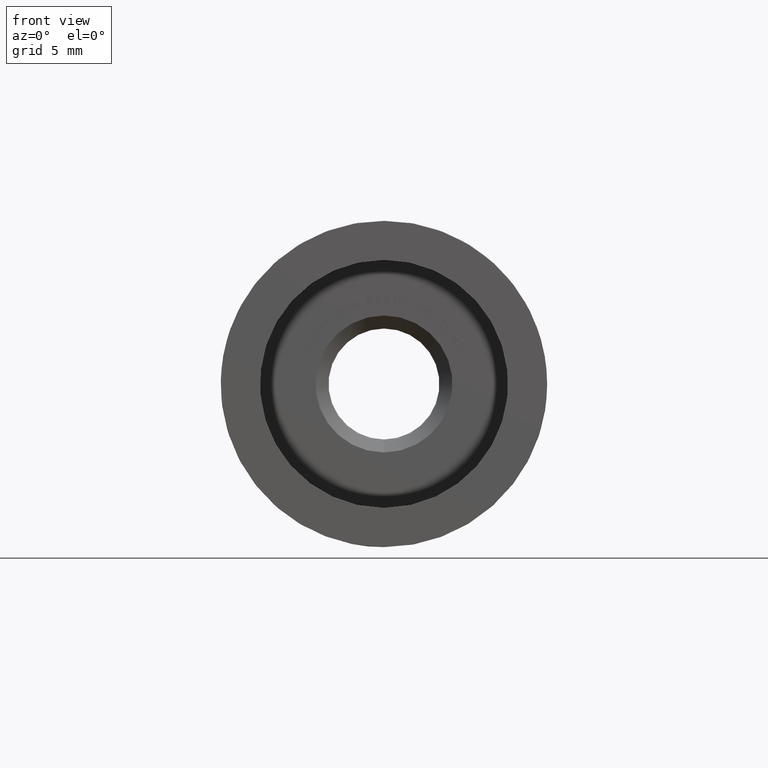
[diagram: clean part render]
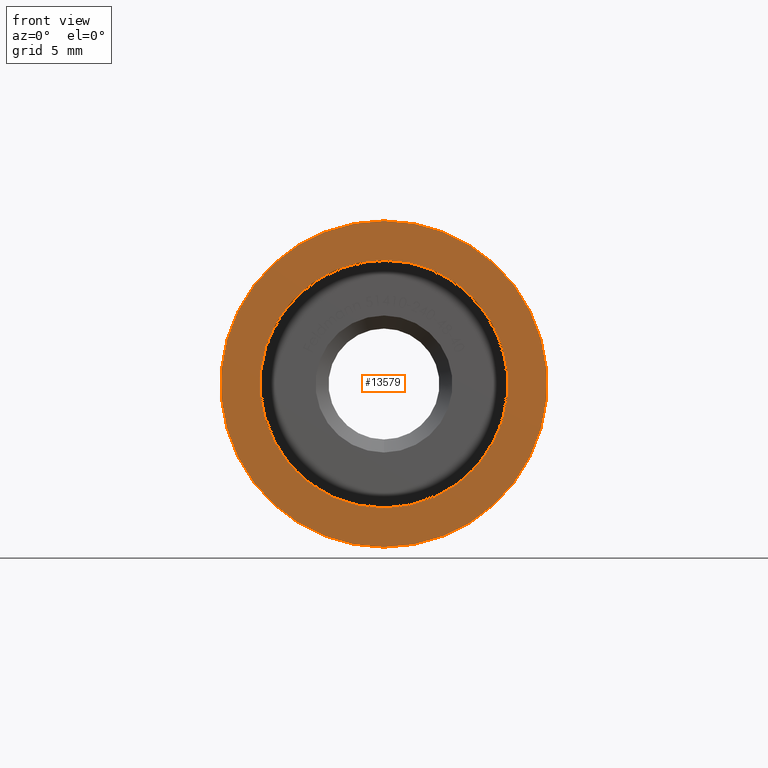
[diagram: same view with one face highlighted and labeled with its STEP entity id]
A machine part, front view. The second image highlights one B-rep face of the part: STEP entity #13579.
In plain terms, the highlighted planar face has unit normal (0, 1, 0).
Its self-contained STEP definition (entity closure, byte-faithful):
#1 = EDGE_LOOP ( 'NONE', ( #10270 ) ) ;
#911 = FACE_OUTER_BOUND ( 'NONE', #1, .T. ) ;
#1436 = CARTESIAN_POINT ( 'NONE',  ( 0.000000000000000000, 0.000000000000000000, 12.50000000000000000 ) ) ;
#1887 = VERTEX_POINT ( 'NONE', #10822 ) ;
#1999 = CARTESIAN_POINT ( 'NONE',  ( 0.000000000000000000, 0.000000000000000000, 0.000000000000000000 ) ) ;
#2896 = AXIS2_PLACEMENT_3D ( 'NONE', #8436, #5031, #9686 ) ;
#3035 = PLANE ( 'NONE',  #13233 ) ;
#3465 = EDGE_CURVE ( 'NONE', #3887, #3887, #7819, .T. ) ;
#3708 = EDGE_LOOP ( 'NONE', ( #14346 ) ) ;
#3887 = VERTEX_POINT ( 'NONE', #1436 ) ;
#5031 = DIRECTION ( 'NONE',  ( 0.000000000000000000, 1.000000000000000000, 0.000000000000000000 ) ) ;
#5472 = EDGE_CURVE ( 'NONE', #1887, #1887, #13667, .T. ) ;
#6124 = AXIS2_PLACEMENT_3D ( 'NONE', #15089, #7929, #7014 ) ;
#6756 = FACE_BOUND ( 'NONE', #3708, .T. ) ;
#7014 = DIRECTION ( 'NONE',  ( 0.000000000000000000, 0.000000000000000000, 1.000000000000000000 ) ) ;
#7819 = CIRCLE ( 'NONE', #6124, 12.50000000000000000 ) ;
#7830 = DIRECTION ( 'NONE',  ( 0.000000000000000000, 1.000000000000000000, 0.000000000000000000 ) ) ;
#7929 = DIRECTION ( 'NONE',  ( 0.000000000000000000, 1.000000000000000000, 0.000000000000000000 ) ) ;
#8436 = CARTESIAN_POINT ( 'NONE',  ( 0.000000000000000000, 0.000000000000000000, 0.000000000000000000 ) ) ;
#9686 = DIRECTION ( 'NONE',  ( 0.000000000000000000, 0.000000000000000000, 1.000000000000000000 ) ) ;
#10121 = DIRECTION ( 'NONE',  ( 0.000000000000000000, -0.000000000000000000, 1.000000000000000000 ) ) ;
#10270 = ORIENTED_EDGE ( 'NONE', *, *, #3465, .F. ) ;
#10822 = CARTESIAN_POINT ( 'NONE',  ( 0.000000000000000000, 0.000000000000000000, 9.500000000000000000 ) ) ;
#13233 = AXIS2_PLACEMENT_3D ( 'NONE', #1999, #7830, #10121 ) ;
#13579 = ADVANCED_FACE ( 'NONE', ( #911, #6756 ), #3035, .F. ) ;
#13667 = CIRCLE ( 'NONE', #2896, 9.500000000000000000 ) ;
#14346 = ORIENTED_EDGE ( 'NONE', *, *, #5472, .T. ) ;
#15089 = CARTESIAN_POINT ( 'NONE',  ( 0.000000000000000000, 0.000000000000000000, 0.000000000000000000 ) ) ;